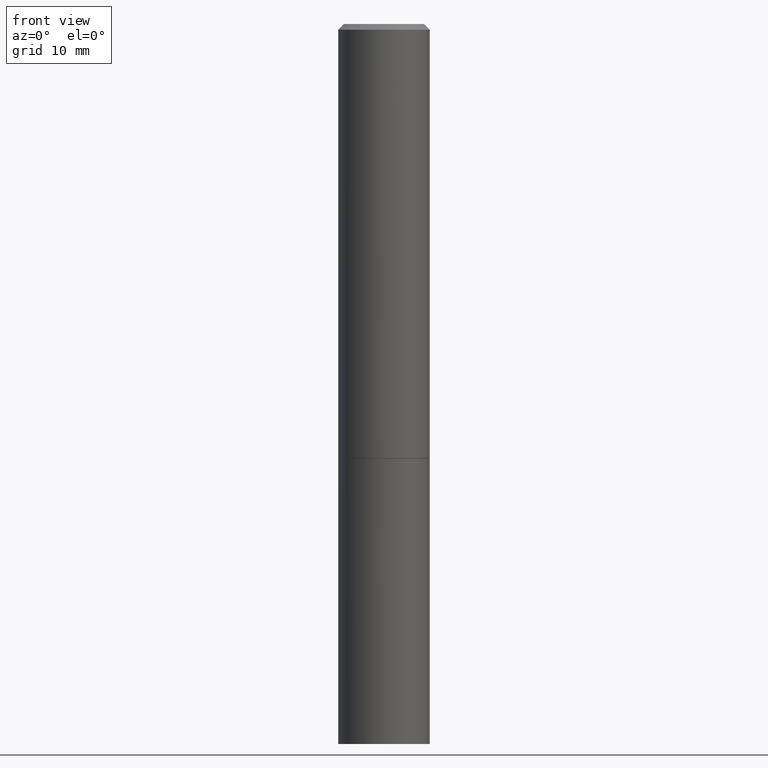
[diagram: clean part render]
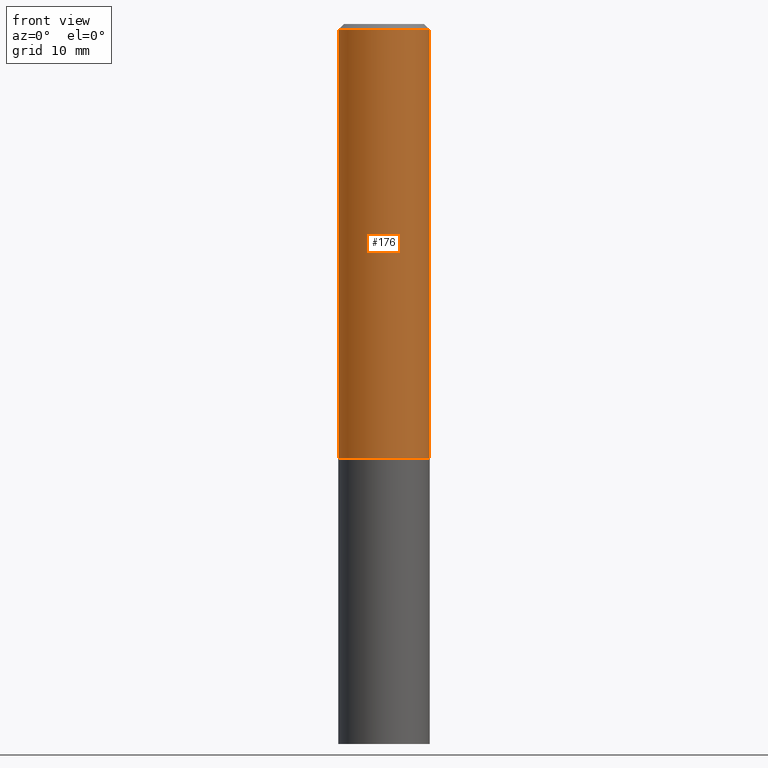
[diagram: same view with one face highlighted and labeled with its STEP entity id]
A machine part, front view. The second image highlights one B-rep face of the part: STEP entity #176.
In plain terms, the highlighted cylindrical surface (partial cylindrical patch) has radius 4.0005 mm, axis along (-0, 0, 1).
Its self-contained STEP definition (entity closure, byte-faithful):
#1 = DIRECTION ( 'NONE',  ( 1.000000000000000000, -6.982962677686266711E-15, 4.876176775795935793E-29 ) ) ;
#7 = CARTESIAN_POINT ( 'NONE',  ( 0.1575000000000000011, -6.319581223306091410E-15, -1.495000000000000329 ) ) ;
#12 = VECTOR ( 'NONE', #19, 39.37007874015748143 ) ;
#16 = CIRCLE ( 'NONE', #325, 0.1574999999999998346 ) ;
#18 = ORIENTED_EDGE ( 'NONE', *, *, #103, .T. ) ;
#19 = DIRECTION ( 'NONE',  ( -2.445468806185136877E-29, 3.491481338843145188E-15, 1.000000000000000000 ) ) ;
#37 = DIRECTION ( 'NONE',  ( -2.445468806185136597E-29, 3.491481338843145583E-15, 1.000000000000000000 ) ) ;
#40 = CIRCLE ( 'NONE', #341, 0.1575000000000000011 ) ;
#76 = VECTOR ( 'NONE', #195, 39.37007874015748143 ) ;
#80 = CARTESIAN_POINT ( 'NONE',  ( -0.1574999999999998901, 1.119104808822157012E-15, -7.747322767151471379E-30 ) ) ;
#87 = LINE ( 'NONE', #165, #12 ) ;
#89 = DIRECTION ( 'NONE',  ( 1.000000000000000000, -6.982962677686268288E-15, 0.000000000000000000 ) ) ;
#91 = CARTESIAN_POINT ( 'NONE',  ( 3.655975865246779683E-29, -5.219764601570503930E-15, -1.495000000000000329 ) ) ;
#100 = ORIENTED_EDGE ( 'NONE', *, *, #304, .F. ) ;
#103 = EDGE_CURVE ( 'NONE', #300, #251, #87, .T. ) ;
#107 = ORIENTED_EDGE ( 'NONE', *, *, #290, .T. ) ;
#127 = EDGE_CURVE ( 'NONE', #303, #327, #309, .T. ) ;
#128 = EDGE_LOOP ( 'NONE', ( #154, #107, #18, #100 ) ) ;
#154 = ORIENTED_EDGE ( 'NONE', *, *, #127, .F. ) ;
#165 = CARTESIAN_POINT ( 'NONE',  ( 0.1574999999999998901, -1.099816621735586297E-15, 7.679978421878593829E-30 ) ) ;
#167 = DIRECTION ( 'NONE',  ( 1.000000000000000000, -6.982962677686265922E-15, 0.000000000000000000 ) ) ;
#168 = CYLINDRICAL_SURFACE ( 'NONE', #361, 0.1574999999999998901 ) ;
#176 = ADVANCED_FACE ( 'NONE', ( #256 ), #168, .T. ) ;
#195 = DIRECTION ( 'NONE',  ( -2.445468806185136877E-29, 3.491481338843145188E-15, 1.000000000000000000 ) ) ;
#251 = VERTEX_POINT ( 'NONE', #261 ) ;
#256 = FACE_OUTER_BOUND ( 'NONE', #128, .T. ) ;
#257 = CARTESIAN_POINT ( 'NONE',  ( 0.000000000000000000, 0.000000000000000000, 0.000000000000000000 ) ) ;
#261 = CARTESIAN_POINT ( 'NONE',  ( 0.1574999999999998346, -1.150358061425878091E-15, -0.02000000000000003511 ) ) ;
#281 = DIRECTION ( 'NONE',  ( -2.445468806185136597E-29, 3.491481338843145583E-15, 1.000000000000000000 ) ) ;
#290 = EDGE_CURVE ( 'NONE', #303, #300, #40, .T. ) ;
#300 = VERTEX_POINT ( 'NONE', #7 ) ;
#303 = VERTEX_POINT ( 'NONE', #345 ) ;
#304 = EDGE_CURVE ( 'NONE', #327, #251, #16, .T. ) ;
#309 = LINE ( 'NONE', #80, #76 ) ;
#313 = CARTESIAN_POINT ( 'NONE',  ( -0.1574999999999998346, 1.029986994958722604E-15, -0.02000000000000003511 ) ) ;
#325 = AXIS2_PLACEMENT_3D ( 'NONE', #347, #37, #167 ) ;
#327 = VERTEX_POINT ( 'NONE', #313 ) ;
#341 = AXIS2_PLACEMENT_3D ( 'NONE', #91, #344, #89 ) ;
#344 = DIRECTION ( 'NONE',  ( -2.445468806185136597E-29, 3.491481338843145583E-15, 1.000000000000000000 ) ) ;
#345 = CARTESIAN_POINT ( 'NONE',  ( -0.1575000000000000011, -1.525692305351524236E-15, -1.495000000000000329 ) ) ;
#347 = CARTESIAN_POINT ( 'NONE',  ( 4.890937612370281041E-31, -6.982962677686302702E-17, -0.02000000000000003511 ) ) ;
#361 = AXIS2_PLACEMENT_3D ( 'NONE', #257, #281, #1 ) ;